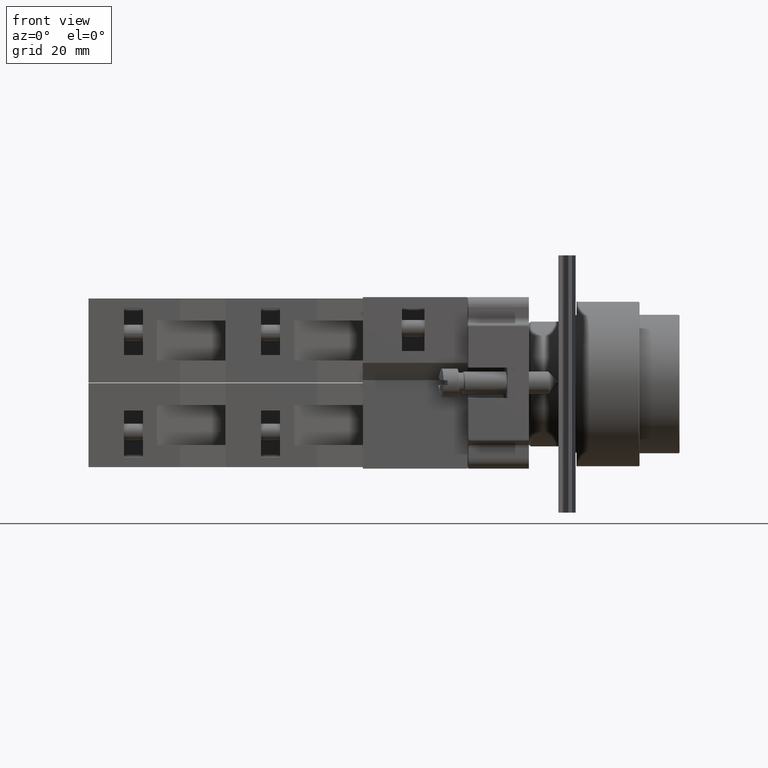
[diagram: clean part render]
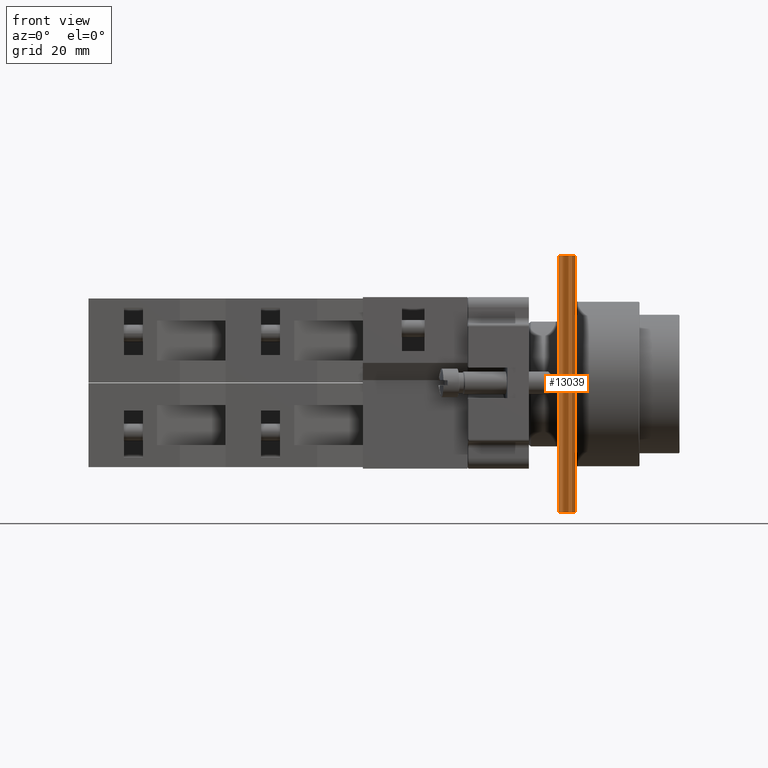
[diagram: same view with one face highlighted and labeled with its STEP entity id]
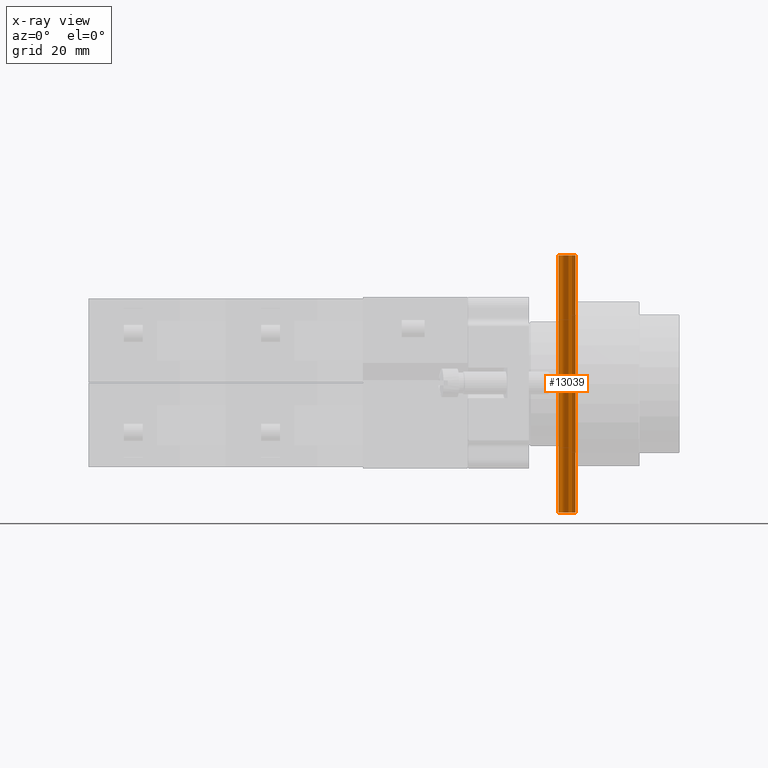
[diagram: x-ray of the same camera — body ghosted, the highlighted face saturated]
A machine part, front view. The second image highlights one B-rep face of the part: STEP entity #13039.
The next image is the same camera in x-ray: the body ghosted, the highlighted face saturated — about 0% of this face is hidden behind the body in this view.
In plain terms, the highlighted face is a freeform B-spline surface patch.
Its self-contained STEP definition (entity closure, byte-faithful):
#12970=CARTESIAN_POINT('',(-12.704183619849172,-62.725398273954283,45.0));
#12971=VERTEX_POINT('',#12970);
#12978=CARTESIAN_POINT('',(-12.704183619849172,-62.725398273954283,0.0));
#12979=VERTEX_POINT('',#12978);
#12980=CARTESIAN_POINT('',(-12.704183619849172,-62.725398273954283,0.0));
#12981=DIRECTION('',(0.0,0.0,1.0));
#12982=VECTOR('',#12981,45.0);
#12983=LINE('',#12980,#12982);
#12984=EDGE_CURVE('',#12979,#12971,#12983,.T.);
#12999=CARTESIAN_POINT('',(-15.704183619849182,-62.725398273954283,0.0));
#13000=CARTESIAN_POINT('',(-14.283734517597093,-58.710287807173117,0.0));
#13001=CARTESIAN_POINT('',(-13.047229203726467,-69.825373706267470,0.0));
#13002=CARTESIAN_POINT('',(-14.371498841514271,-57.028426828334801,0.0));
#13003=CARTESIAN_POINT('',(-12.704183619849177,-62.725398273954298,0.0));
#13004=CARTESIAN_POINT('',(-15.704183619849182,-62.725398273954283,45.0));
#13005=CARTESIAN_POINT('',(-14.283734517597093,-58.710287807173117,45.0));
#13006=CARTESIAN_POINT('',(-13.047229203726467,-69.825373706267470,45.0));
#13007=CARTESIAN_POINT('',(-14.371498841514271,-57.028426828334801,45.0));
#13008=CARTESIAN_POINT('',(-12.704183619849177,-62.725398273954298,45.0));
#13009=B_SPLINE_SURFACE_WITH_KNOTS('',4,1,((#12999,#13004),(#13000,#13005),(#13001,#13006),(#13002,#13007),(#13003,#13008)),.UNSPECIFIED.,.F.,.F.,.U.,(5,5),(2,2),(0.0,1.0),(0.0,4.500000000000000),.UNSPECIFIED.);
#13010=CARTESIAN_POINT('',(-15.704183619849179,-62.725398273954283,45.0));
#13011=VERTEX_POINT('',#13010);
#13012=CARTESIAN_POINT('',(-12.704183619849177,-62.725398273954298,45.0));
#13013=CARTESIAN_POINT('',(-14.371498841514271,-57.028426828334801,45.0));
#13014=CARTESIAN_POINT('',(-13.047229203726467,-69.825373706267470,45.0));
#13015=CARTESIAN_POINT('',(-14.283734517597093,-58.710287807173117,45.0));
#13016=CARTESIAN_POINT('',(-15.704183619849182,-62.725398273954283,45.0));
#13017=QUASI_UNIFORM_CURVE('',4,(#13012,#13013,#13014,#13015,#13016),.UNSPECIFIED.,.F.,.U.);
#13018=EDGE_CURVE('',#12971,#13011,#13017,.T.);
#13019=ORIENTED_EDGE('',*,*,#13018,.T.);
#13020=CARTESIAN_POINT('',(-15.704183619849179,-62.725398273954283,0.0));
#13021=VERTEX_POINT('',#13020);
#13022=CARTESIAN_POINT('',(-15.704183619849179,-62.725398273954283,0.0));
#13023=DIRECTION('',(0.0,0.0,1.0));
#13024=VECTOR('',#13023,45.0);
#13025=LINE('',#13022,#13024);
#13026=EDGE_CURVE('',#13021,#13011,#13025,.T.);
#13027=ORIENTED_EDGE('',*,*,#13026,.F.);
#13028=CARTESIAN_POINT('',(-15.704183619849182,-62.725398273954283,0.0));
#13029=CARTESIAN_POINT('',(-14.283734517597093,-58.710287807173117,0.0));
#13030=CARTESIAN_POINT('',(-13.047229203726467,-69.825373706267470,0.0));
#13031=CARTESIAN_POINT('',(-14.371498841514271,-57.028426828334801,0.0));
#13032=CARTESIAN_POINT('',(-12.704183619849177,-62.725398273954298,0.0));
#13033=QUASI_UNIFORM_CURVE('',4,(#13028,#13029,#13030,#13031,#13032),.UNSPECIFIED.,.F.,.U.);
#13034=EDGE_CURVE('',#13021,#12979,#13033,.T.);
#13035=ORIENTED_EDGE('',*,*,#13034,.T.);
#13036=ORIENTED_EDGE('',*,*,#12984,.T.);
#13037=EDGE_LOOP('',(#13019,#13027,#13035,#13036));
#13038=FACE_OUTER_BOUND('',#13037,.T.);
#13039=ADVANCED_FACE('',(#13038),#13009,.T.);